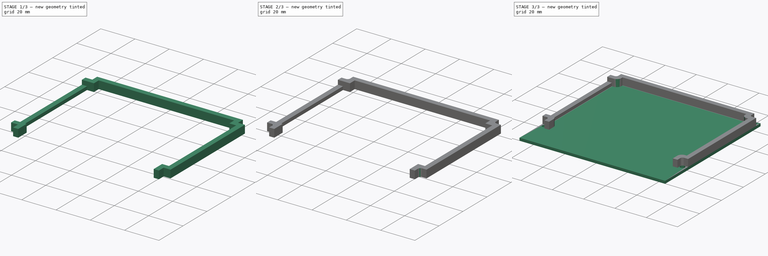
[diagram: build sequence overview — one tinted view per stage of 3, left to right]
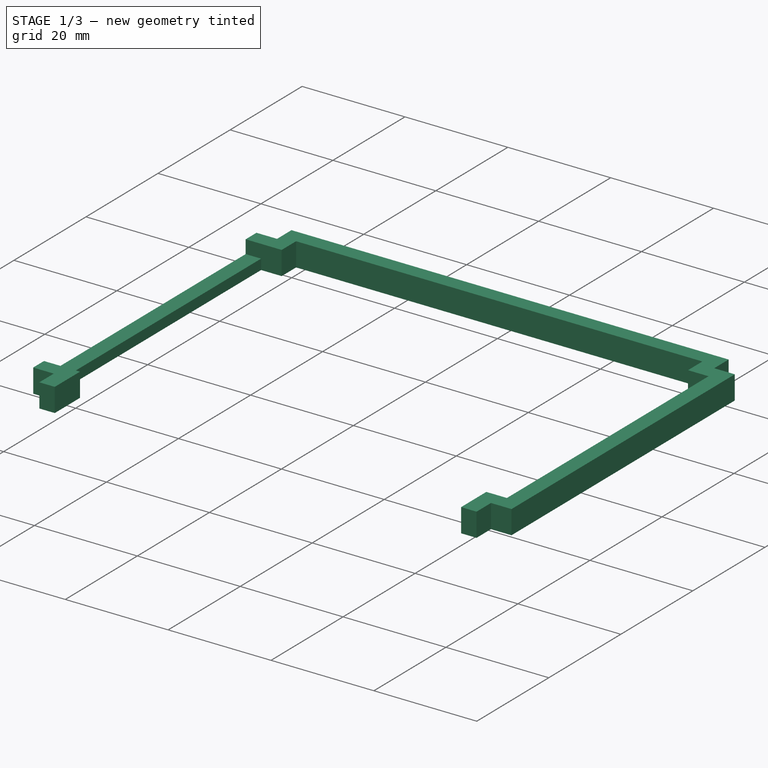
[diagram: stage 1 of 3 — iso view after this stage's code; geometry added in this stage tinted green]
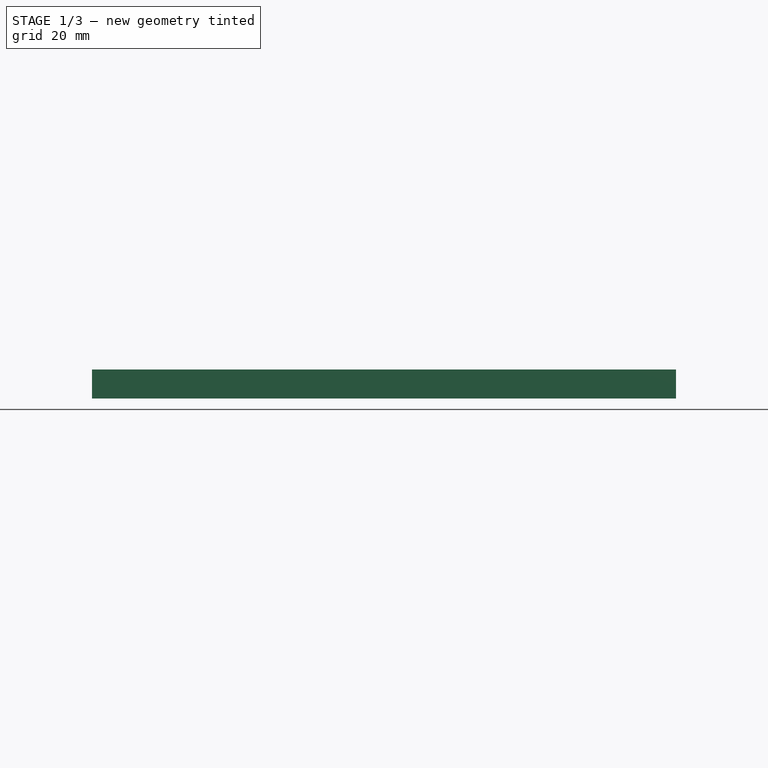
[diagram: stage 1 of 3 — front view after this stage's code; geometry added in this stage tinted green]
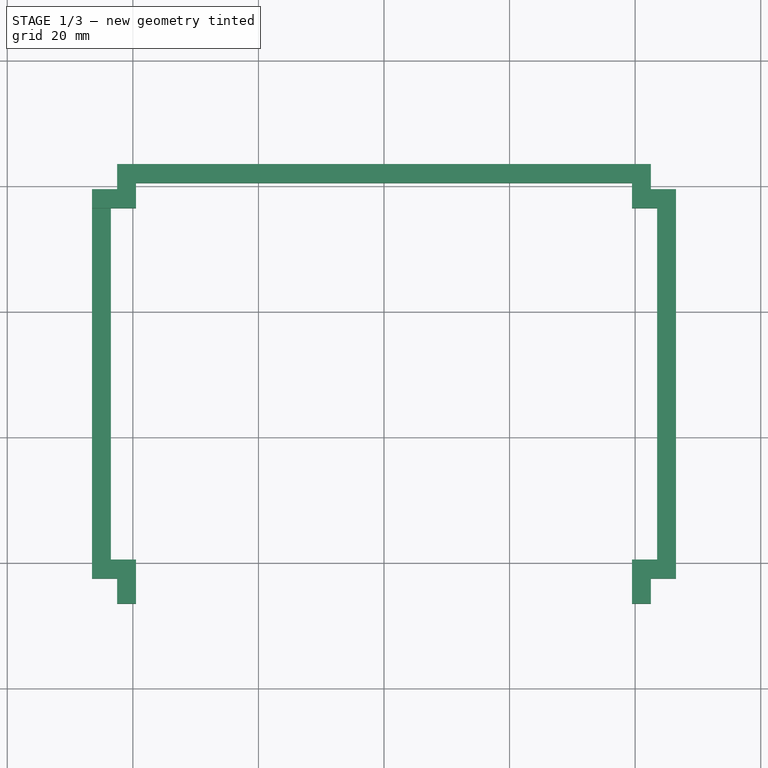
[diagram: stage 1 of 3 — top view after this stage's code; geometry added in this stage tinted green]
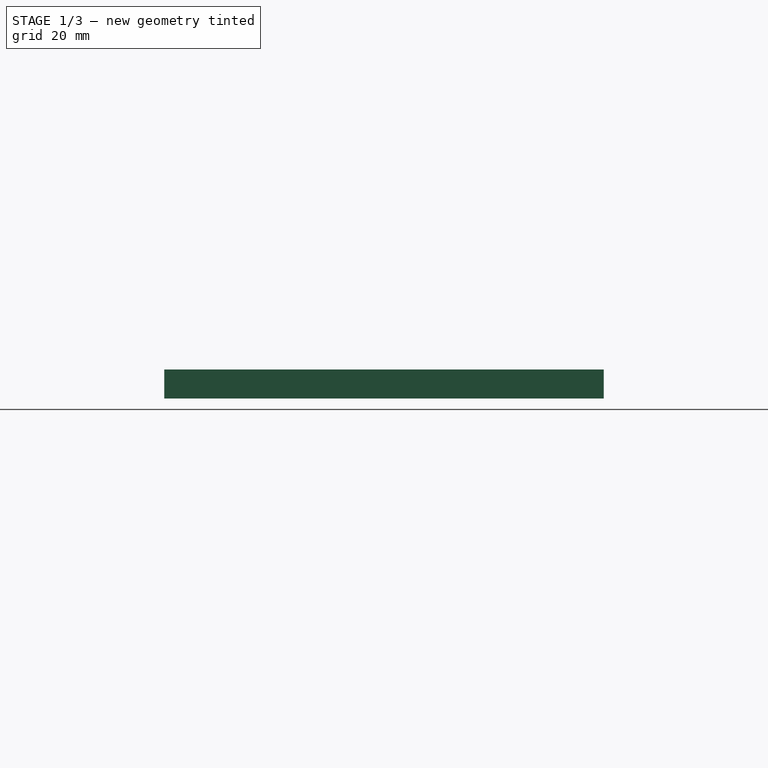
[diagram: stage 1 of 3 — right view after this stage's code; geometry added in this stage tinted green]
FCSTD DOCUMENT  (FreeCAD 0.14R3702 (Git))
Label: LCD-Spacer
License: CC-BY 3.0
LicenseURL: http://creativecommons.org/licenses/by/3.0/
objects: Sketcher::SketchObject×3, PartDesign::Pad×2, PartDesign::Fillet×2, PartDesign::Pocket×1
note: 11 computed .brp shape members not serialized (recipe doc carries the construction recipe); baked Part::Feature solids carry a one-line shape summary decoded from their .brp

FEATURE [Sketcher::SketchObject] Sketch001002
  sketch-geometry (28):
    g0: LineSegment StartX=-46.5 StartY=39.5 StartZ=0 EndX=-42.5 EndY=39.5 EndZ=0
    g1: LineSegment StartX=-42.5 StartY=39.5 StartZ=0 EndX=-42.5 EndY=43.5 EndZ=0
    g2: LineSegment StartX=-42.5 StartY=43.5 StartZ=0 EndX=42.5 EndY=43.5 EndZ=0
    g3: LineSegment StartX=42.5 StartY=43.5 StartZ=0 EndX=42.5 EndY=39.5 EndZ=0
    g4: LineSegment StartX=42.5 StartY=39.5 StartZ=0 EndX=46.5 EndY=39.5 EndZ=0
    g5: LineSegment StartX=46.5 StartY=39.5 StartZ=0 EndX=46.5 EndY=-22.5 EndZ=0
    g6: LineSegment StartX=46.5 StartY=-22.5 StartZ=0 EndX=42.5 EndY=-22.5 EndZ=0
    g7: LineSegment StartX=42.5 StartY=-22.5 StartZ=0 EndX=42.5 EndY=-26.5 EndZ=0
    g8: LineSegment StartX=-42.5 StartY=-26.5 StartZ=0 EndX=-42.5 EndY=-22.5 EndZ=0
    g9: LineSegment StartX=-42.5 StartY=-22.5 StartZ=0 EndX=-46.5 EndY=-22.5 EndZ=0
    g10: LineSegment StartX=-43.5 StartY=-19.5 StartZ=0 EndX=-39.5 EndY=-19.5 EndZ=0
    g11: LineSegment StartX=-39.5 StartY=-19.5 StartZ=0 EndX=-39.5 EndY=-26.5 EndZ=0
    g12: LineSegment StartX=39.5 StartY=-26.5 StartZ=0 EndX=39.5 EndY=-19.5 EndZ=0
    g13: LineSegment StartX=39.5 StartY=-19.5 StartZ=0 EndX=43.5 EndY=-19.5 EndZ=0
    g14: LineSegment StartX=43.5 StartY=-19.5 StartZ=0 EndX=43.5 EndY=36.5 EndZ=0
    g15: LineSegment StartX=43.5 StartY=36.5 StartZ=0 EndX=39.5 EndY=36.5 EndZ=0
    g16: LineSegment StartX=39.5 StartY=36.5 StartZ=0 EndX=39.5 EndY=40.5 EndZ=0
    g17: LineSegment StartX=39.5 StartY=40.5 StartZ=0 EndX=-39.5 EndY=40.5 EndZ=0
    g18: LineSegment StartX=-39.5 StartY=40.5 StartZ=0 EndX=-39.5 EndY=36.5 EndZ=0
    g19: LineSegment StartX=-39.5 StartY=36.5 StartZ=0 EndX=-43.5 EndY=36.5 EndZ=0
    g20: LineSegment [constr] StartX=-46.5 StartY=43.5 StartZ=0 EndX=46.5 EndY=43.5 EndZ=0
    g21: LineSegment [constr] StartX=46.5 StartY=43.5 StartZ=0 EndX=46.5 EndY=-26.5 EndZ=0
    g22: LineSegment [constr] StartX=46.5 StartY=-26.5 StartZ=0 EndX=-46.5 EndY=-26.5 EndZ=0
    g23: LineSegment [constr] StartX=-46.5 StartY=-26.5 StartZ=0 EndX=-46.5 EndY=43.5 EndZ=0
    g24: LineSegment StartX=-42.5 StartY=-26.5 StartZ=0 EndX=-39.5 EndY=-26.5 EndZ=0
    g25: LineSegment StartX=42.5 StartY=-26.5 StartZ=0 EndX=39.5 EndY=-26.5 EndZ=0
    g26: LineSegment StartX=-46.5 StartY=39.5 StartZ=0 EndX=-46.5 EndY=-22.5 EndZ=0
    g27: LineSegment StartX=-43.5 StartY=36.5 StartZ=0 EndX=-43.5 EndY=-19.5 EndZ=0
  constraints (84):
    c: Horizontal(g0)
    c: Coincident(g0,g1)
    c: Vertical(g1)
    c: Coincident(g1,g2)
    c: Horizontal(g2)
    c: Coincident(g2,g3)
    c: Vertical(g3)
    c: Coincident(g3,g4)
    c: Horizontal(g4)
    c: Coincident(g4,g5)
    c: Vertical(g5)
    c: Coincident(g5,g6)
    c: Horizontal(g6)
    c: Coincident(g6,g7)
    c: Vertical(g7)
    c: Vertical(g8)
    c: Coincident(g8,g9)
    c: Horizontal(g9)
    c: Horizontal(g10)
    c: Coincident(g10,g11)
    c: Vertical(g11)
    c: Vertical(g12)
    c: Coincident(g12,g13)
    c: Horizontal(g13)
    c: Coincident(g13,g14)
    c: Vertical(g14)
    c: Coincident(g14,g15)
    c: Coincident(g15,g16)
    c: Coincident(g16,g17)
    c: Horizontal(g17)
    c: Coincident(g17,g18)
    c: Vertical(g18)
    c: Coincident(g18,g19)
    c: Horizontal(g19)
    c: Horizontal(g15)
    c: Vertical(g16)
    c: Coincident(g20,g21)
    c: Coincident(g21,g22)
    c: Coincident(g22,g23)
    c: Coincident(g23,g20)
    c: Horizontal(g20)
    c: Horizontal(g22)
    c: Vertical(g21)
    c: Vertical(g23)
    c: DistanceX(g20) = 93
    c: Symmetric(g20,g20,g-2)
    c: DistanceY(g-1,g20) = 43.5
    c: DistanceY(g21) = -70
    c: DistanceX(g0) = 4
    c: DistanceY(g1) = 4
    c: PointOnObject(g1,g20)
    c: PointOnObject(g0,g23)
    c: PointOnObject(g5,g21)
    c: PointOnObject(g7,g22)
    c: Equal(g9,g0)
    c: Equal(g9,g6)
    c: Equal(g4,g6)
    c: Equal(g3,g1)
    c: DistanceY(g8) = 4
    c: Equal(g8,g7)
    c: DistanceX(g10) = 4
    c: Equal(g19,g10)
    c: Equal(g11,g12)
    c: Distance(g17,g2) = 3
    c: Equal(g18,g16)
    c: Distance(g14,g5) = 3
    c: Equal(g13,g15)
    c: Distance(g12,g21) = 7
    c: Coincident(g24,g8)
    c: Coincident(g24,g11)
    c: Horizontal(g24)
    c: PointOnObject(g11,g22)
    c: Coincident(g25,g7)
    c: Coincident(g25,g12)
    c: Horizontal(g25)
    c: Vertical(g26)
    c: Vertical(g27)
    c: Coincident(g19,g27)
    c: Coincident(g27,g10)
    c: Coincident(g26,g9)
    c: Coincident(g0,g26)
    c: DistanceX(g19,g0) = -3
    c: DistanceY(g16) = 4
    c: DistanceY(g11) = -7
FEATURE [PartDesign::Pad] Pad001
  Length = 4.6
  Length2 = 100
  Sketch = -> Sketch001002
  Type = 0
FEATURE [Sketcher::SketchObject] Sketch001003
  ExternalGeometry = -> [Pad001]
  Placement = pos=(0,0,4.6) rot=(0,0,1;0rad)
  Support = -> Pad001 [Face26]
  sketch-geometry (4):
    g0: LineSegment StartX=-46.5 StartY=36.5 StartZ=0 EndX=-43.5 EndY=36.5 EndZ=0
    g1: LineSegment StartX=-43.5 StartY=36.5 StartZ=0 EndX=-43.5 EndY=-19.5 EndZ=0
    g2: LineSegment StartX=-43.5 StartY=-19.5 StartZ=0 EndX=-46.5 EndY=-19.5 EndZ=0
    g3: LineSegment StartX=-46.5 StartY=-19.5 StartZ=0 EndX=-46.5 EndY=36.5 EndZ=0
  constraints (11):
    c: Coincident(g0,g1)
    c: Coincident(g1,g2)
    c: Coincident(g2,g3)
    c: Coincident(g3,g0)
    c: Horizontal(g0)
    c: Horizontal(g2)
    c: Vertical(g1)
    c: Vertical(g3)
    c: Coincident(g1,g-4)
    c: Coincident(g0,g-3)
    c: PointOnObject(g0,g-5)
FEATURE [PartDesign::Pocket] Pocket
  Length = 2.6
  Sketch = -> Sketch001003
  Type = 0
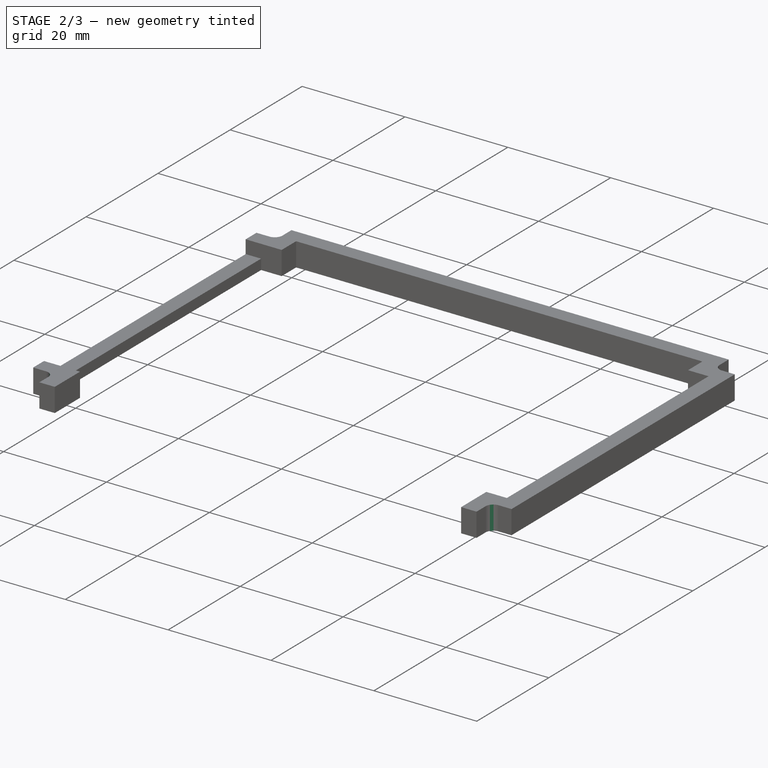
[diagram: stage 2 of 3 — iso view after this stage's code; geometry added in this stage tinted green]
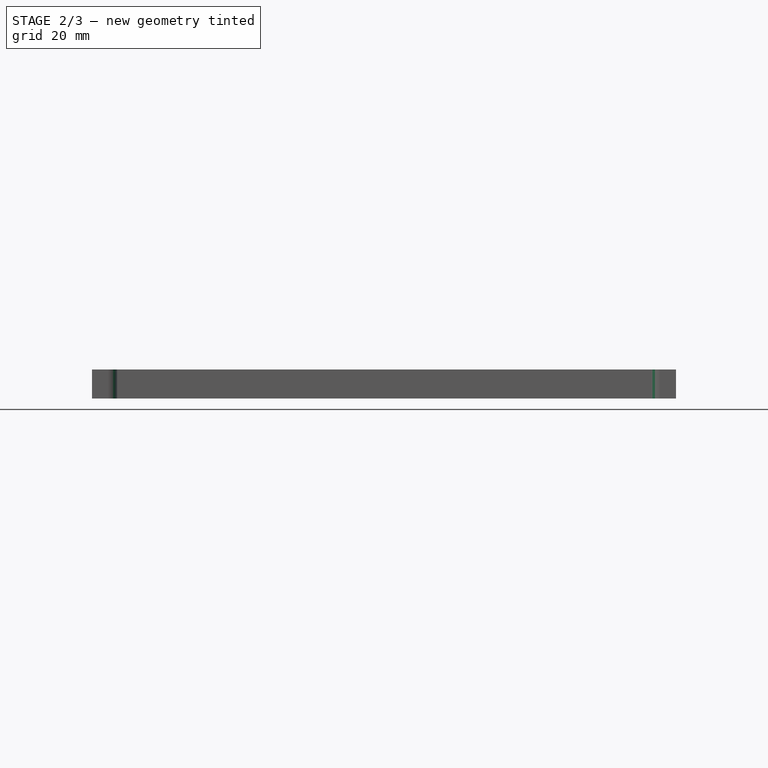
[diagram: stage 2 of 3 — front view after this stage's code; geometry added in this stage tinted green]
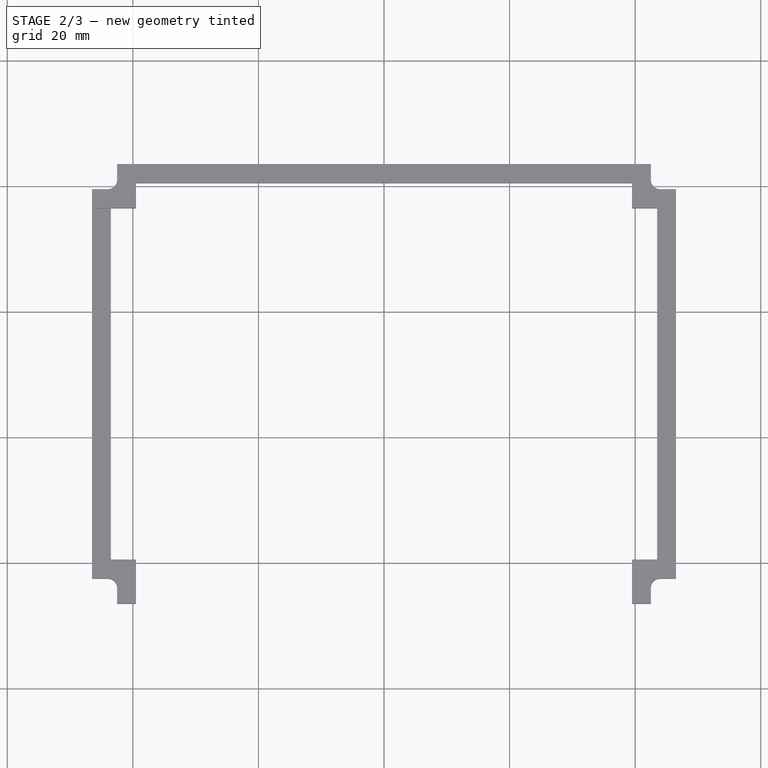
[diagram: stage 2 of 3 — top view after this stage's code; geometry added in this stage tinted green]
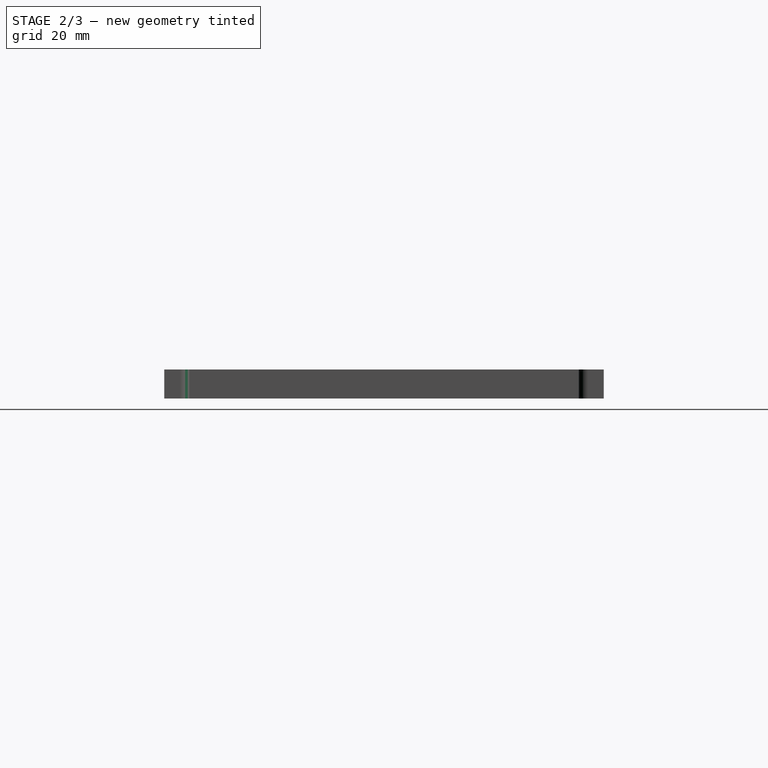
[diagram: stage 2 of 3 — right view after this stage's code; geometry added in this stage tinted green]
FEATURE [PartDesign::Fillet] Fillet
  Base = -> Pocket [Edge68,Edge65,Edge2,Edge52]
  Radius = 1.5
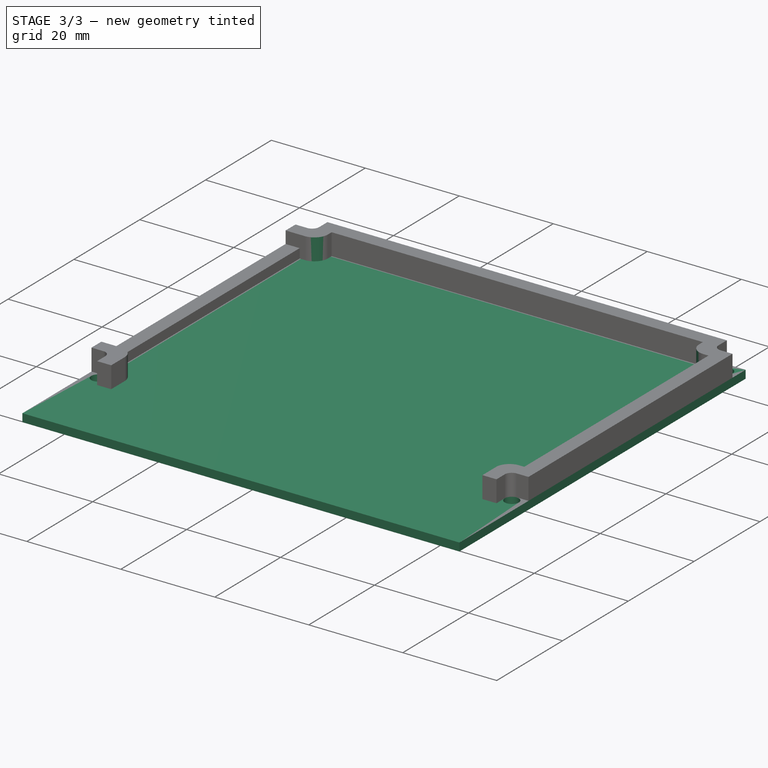
[diagram: stage 3 of 3 — iso view after this stage's code; geometry added in this stage tinted green]
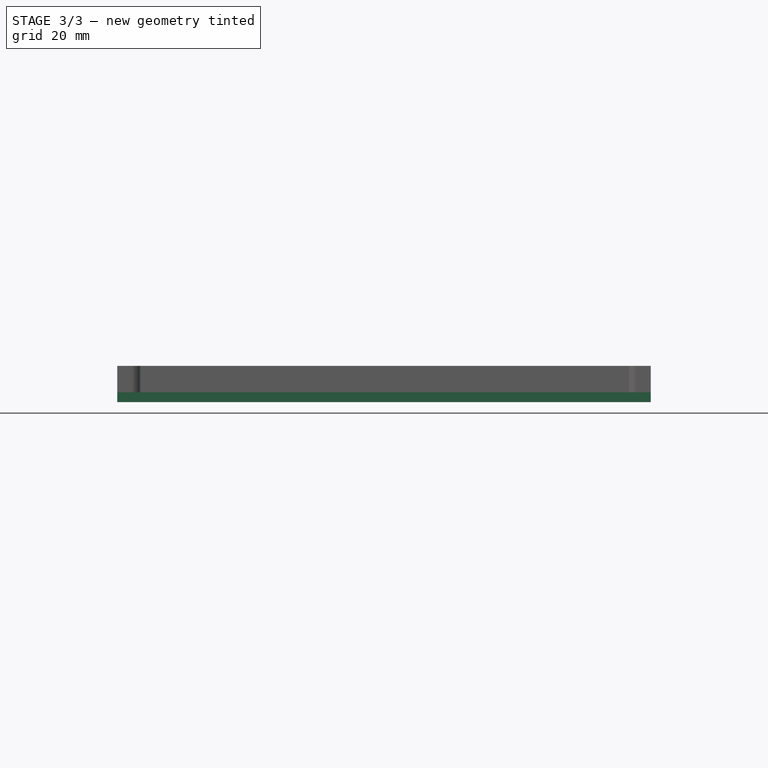
[diagram: stage 3 of 3 — front view after this stage's code; geometry added in this stage tinted green]
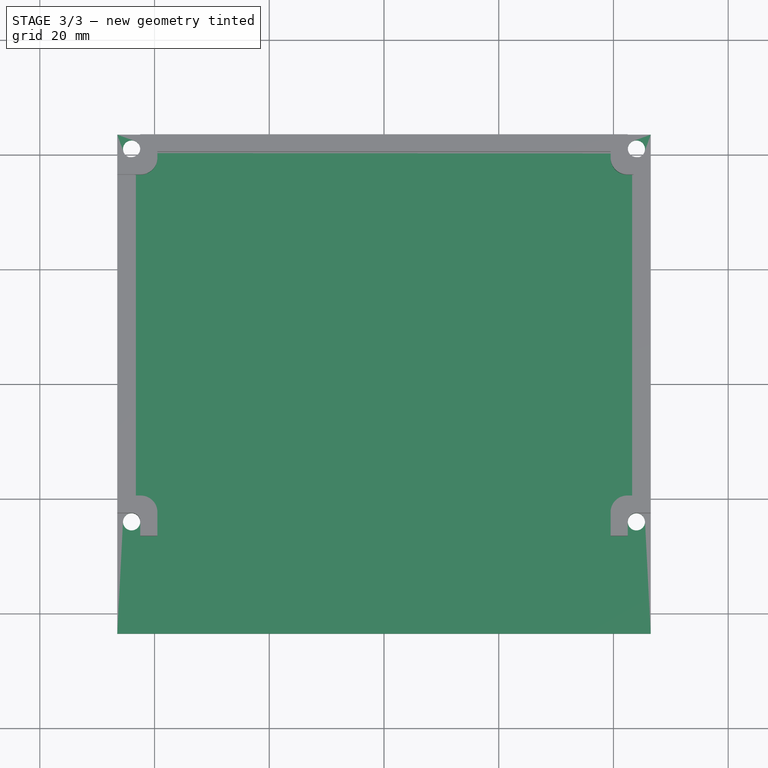
[diagram: stage 3 of 3 — top view after this stage's code; geometry added in this stage tinted green]
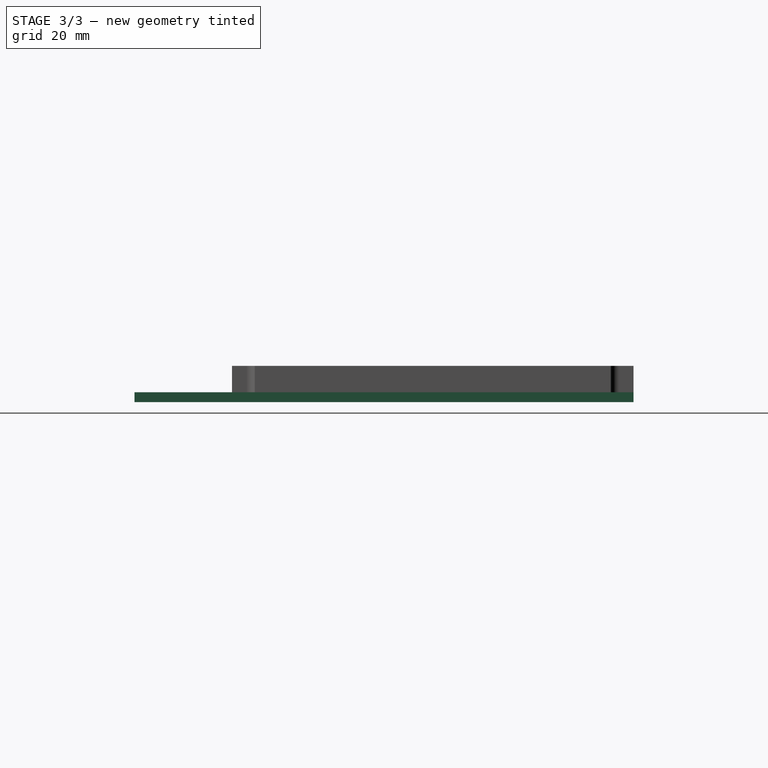
[diagram: stage 3 of 3 — right view after this stage's code; geometry added in this stage tinted green]
FEATURE [Sketcher::SketchObject] Sketch
  sketch-geometry (12):
    g0: LineSegment StartX=-46.5 StartY=43.5 StartZ=0 EndX=46.5 EndY=43.5 EndZ=0
    g1: LineSegment StartX=46.5 StartY=43.5 StartZ=0 EndX=46.5 EndY=-43.5 EndZ=0
    g2: LineSegment StartX=46.5 StartY=-43.5 StartZ=0 EndX=-46.5 EndY=-43.5 EndZ=0
    g3: LineSegment StartX=-46.5 StartY=-43.5 StartZ=0 EndX=-46.5 EndY=43.5 EndZ=0
    g4: Circle CenterX=-44 CenterY=41 CenterZ=0 NormalX=0 NormalY=0 NormalZ=1 Radius=1.5
    g5: Circle CenterX=44 CenterY=41 CenterZ=0 NormalX=0 NormalY=0 NormalZ=1 Radius=1.5
    g6: Circle CenterX=-44 CenterY=-24 CenterZ=0 NormalX=0 NormalY=0 NormalZ=1 Radius=1.5
    g7: Circle CenterX=44 CenterY=-24 CenterZ=0 NormalX=0 NormalY=0 NormalZ=1 Radius=1.5
    g8: LineSegment [constr] StartX=-44 StartY=41 StartZ=0 EndX=44 EndY=41 EndZ=0
    g9: LineSegment [constr] StartX=44 StartY=41 StartZ=0 EndX=44 EndY=-24 EndZ=0
    g10: LineSegment [constr] StartX=44 StartY=-24 StartZ=0 EndX=-44 EndY=-24 EndZ=0
    g11: LineSegment [constr] StartX=-44 StartY=-24 StartZ=0 EndX=-44 EndY=41 EndZ=0
  constraints (31):
    c: Coincident(g0,g1)
    c: Coincident(g1,g2)
    c: Coincident(g2,g3)
    c: Coincident(g3,g0)
    c: Horizontal(g0)
    c: Horizontal(g2)
    c: Vertical(g1)
    c: Vertical(g3)
    c: DistanceX(g0) = 93
    c: Symmetric(g0,g1,g-1)
    c: Radius(g4) = 1.5
    c: Equal(g4,g5)
    c: Equal(g5,g7)
    c: Equal(g7,g6)
    c: Distance(g4,g3) = 2.5
    c: Coincident(g8,g9)
    c: Coincident(g9,g10)
    c: Coincident(g10,g11)
    c: Coincident(g11,g8)
    c: Horizontal(g8)
    c: Horizontal(g10)
    c: Vertical(g9)
    c: Vertical(g11)
    c: Coincident(g8,g4)
    c: Coincident(g9,g7)
    c: Coincident(g6,g10)
    c: Coincident(g8,g5)
    c: DistanceX(g8) = 88
    c: DistanceY(g11) = 65
    c: Distance(g4,g0) = 2.5
    c: DistanceY(g3) = 87
FEATURE [PartDesign::Pad] Pad  label="White-Circuit-Board"
  Length = 1.71
  Length2 = 100
  Reversed = true
  Sketch = -> Sketch
  Type = 0
FEATURE [PartDesign::Fillet] Fillet001  label="Spacer"
  Base = -> Fillet [Edge89,Edge88,Edge82,Edge72]
  Radius = 2.9
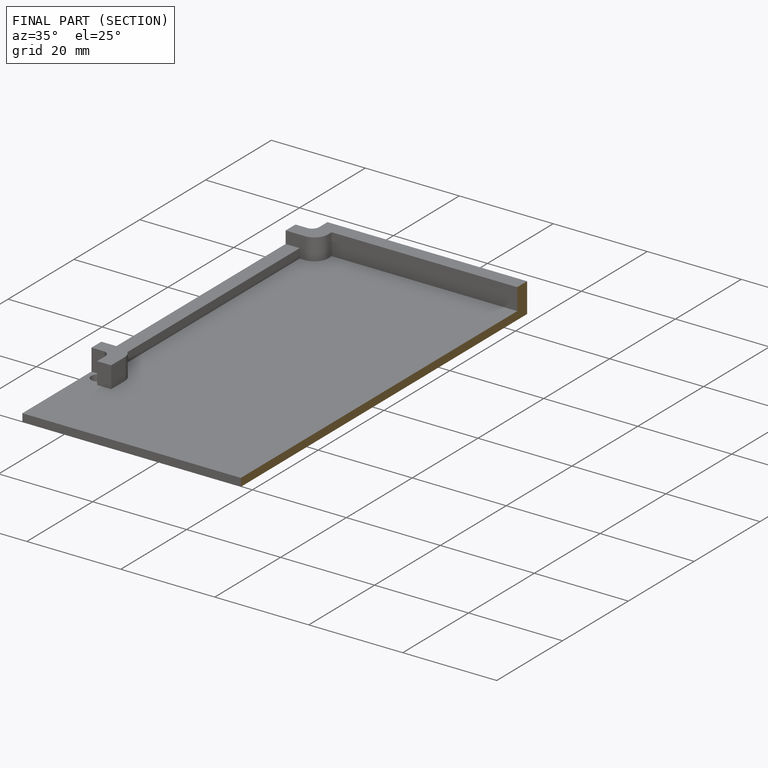
[diagram: finished part — half-section view (interior)]
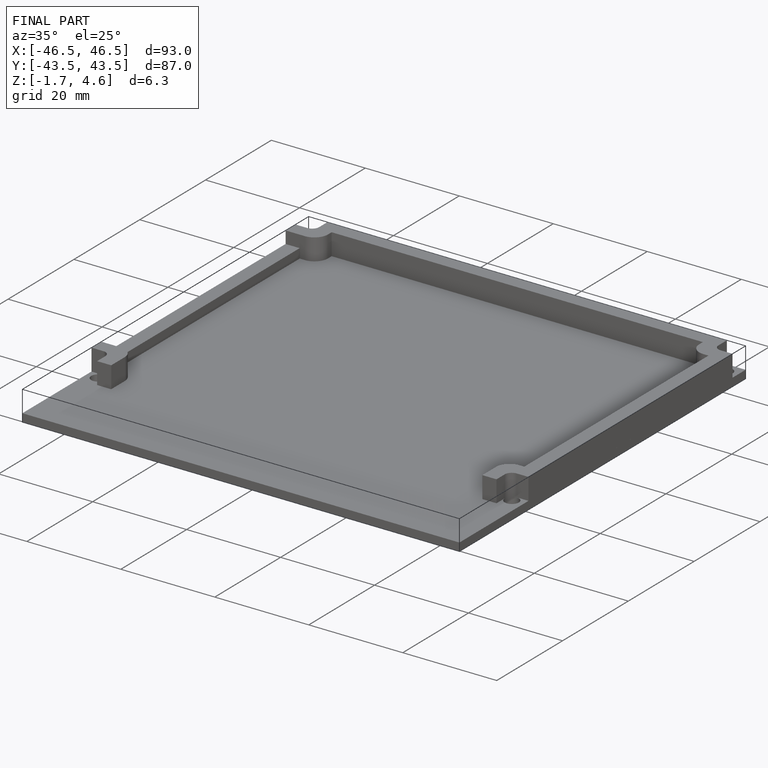
[diagram: finished part — iso view with bounding-box wireframe]
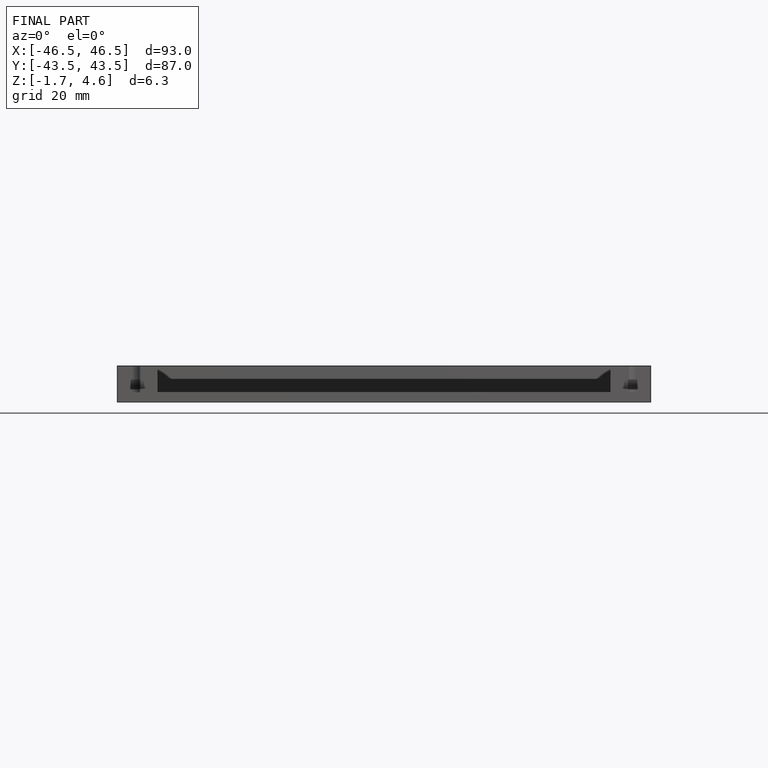
[diagram: finished part — front view with bounding-box wireframe]
